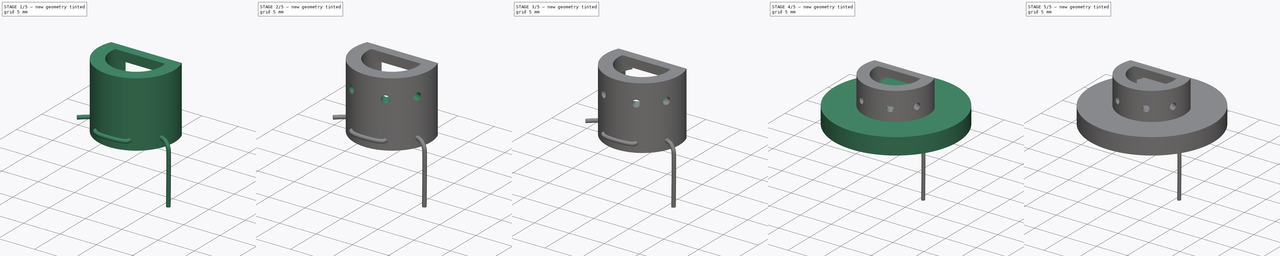
[diagram: build sequence overview — one tinted view per stage of 5, left to right]
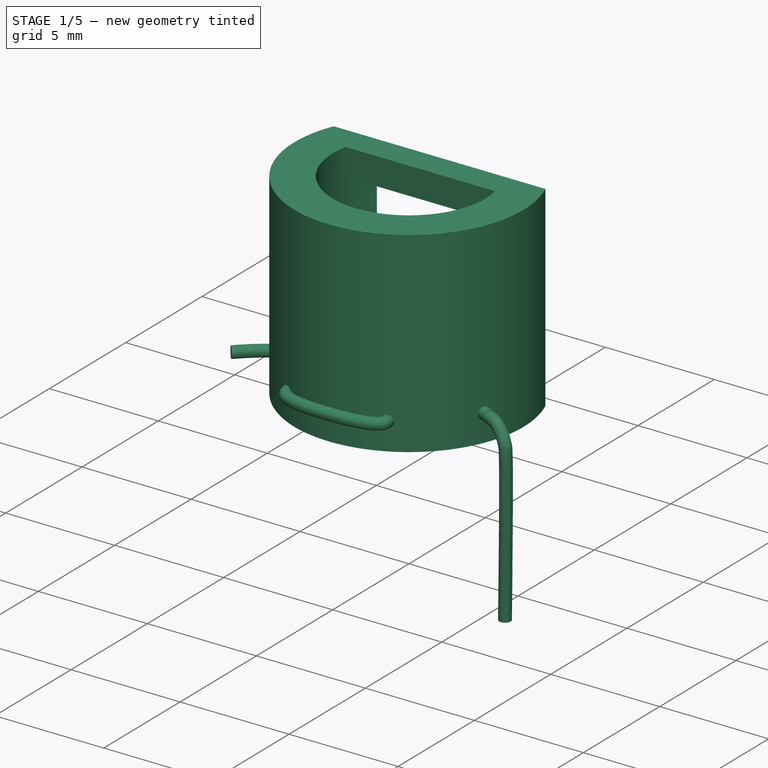
[diagram: stage 1 of 5 — iso view after this stage's code; geometry added in this stage tinted green]
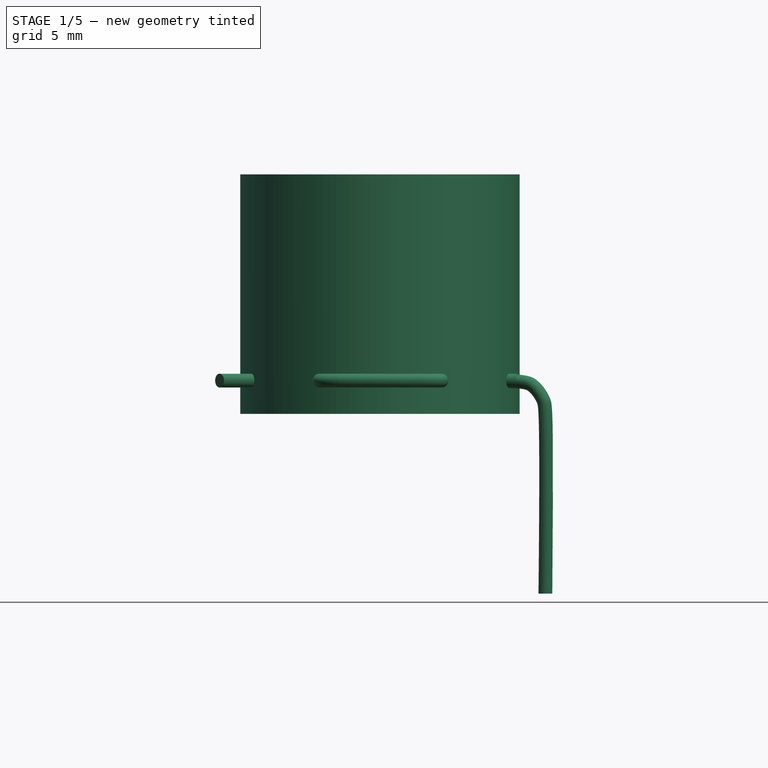
[diagram: stage 1 of 5 — front view after this stage's code; geometry added in this stage tinted green]
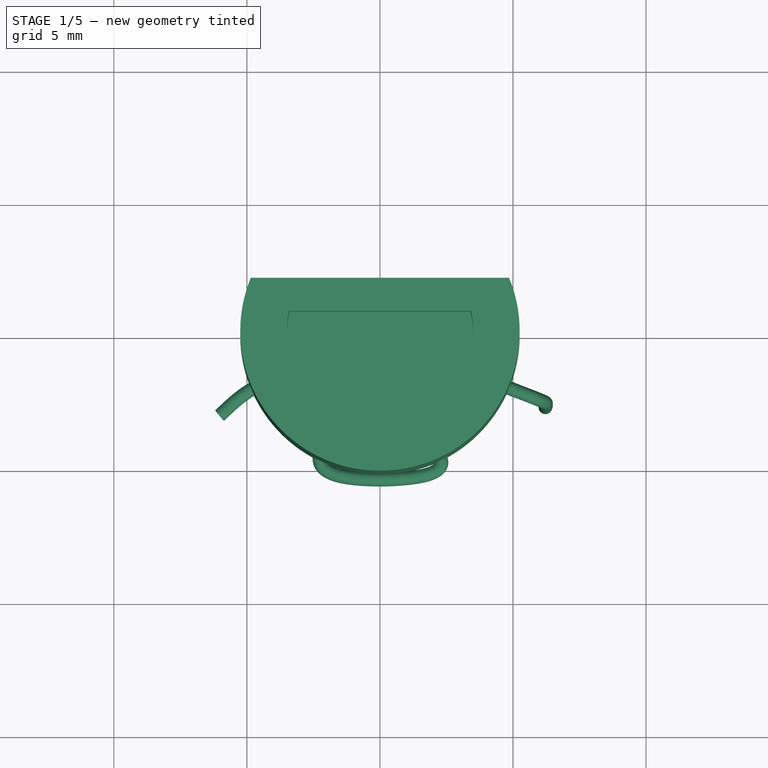
[diagram: stage 1 of 5 — top view after this stage's code; geometry added in this stage tinted green]
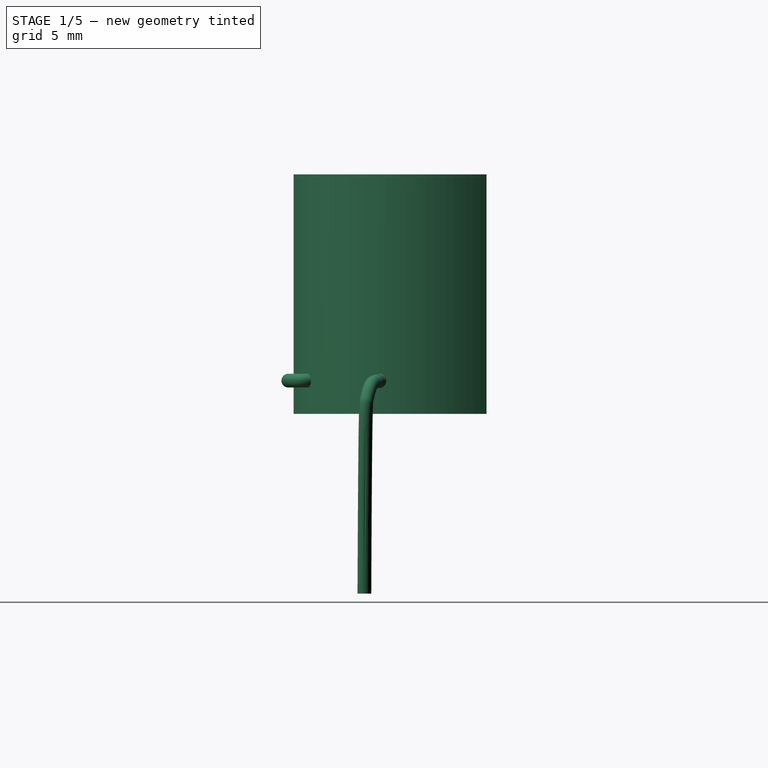
[diagram: stage 1 of 5 — right view after this stage's code; geometry added in this stage tinted green]
FCSTD DOCUMENT  (FreeCAD 0.20R29177 (Git))
Label: SR66_double-battery-holder
License: All rights reserved
LicenseURL: http://en.wikipedia.org/wiki/All_rights_reserved
objects: PartDesign::AdditiveCylinder×12, Sketcher::SketchObject×10, PartDesign::SubtractiveCylinder×10, PartDesign::Body×7, PartDesign::AdditivePipe×3, PartDesign::AdditiveEllipsoid×2, PartDesign::SubtractiveBox×2, PartDesign::AdditiveBox×2, Part::Feature×1, App::DocumentObjectGroup×1, App::Part×1
note: 80 computed .brp shape members not serialized (recipe doc carries the construction recipe); baked Part::Feature solids carry a one-line shape summary decoded from their .brp

FEATURE [PartDesign::Body] Body002  label="cell2"
  Group = -> [Sketch001,Cylinder003,Cylinder004,Cylinder005,Ellipsoid001]
  Origin = -> Origin002
  Placement = pos=(0,0,5.235) rot=(0,0,1;0rad)
  Tip = -> Ellipsoid001
FEATURE [PartDesign::AdditiveCylinder] Cylinder006  label="Main block"
  Angle = 360
  AttacherType = Attacher::AttachEngine3D
  AttachmentOffset = pos=(0,0,-1.25) rot=(0,0,1;0rad)
  FirstAngle = 0
  Height = 9
  MapMode = 5
  Placement = pos=(0,0,-1.25) rot=(0,0,1;0rad)
  Radius = 5.25
  SecondAngle = 0
  Support = -> [XY_Plane001]
FEATURE [PartDesign::SubtractiveBox] Box
  AttacherType = Attacher::AttachEngine3D
  AttachmentOffset = pos=(-5,2,-1.5) rot=(0,0,1;0rad)
  BaseFeature = -> Cylinder006
  Height = 10
  Length = 10
  MapMode = 5
  Placement = pos=(-5,2,-1.5) rot=(0,0,1;0rad)
  Support = -> [XY_Plane001]
  Width = 4
FEATURE [PartDesign::SubtractiveCylinder] Cylinder007  label="center-cut"
  Angle = 360
  AttacherType = Attacher::AttachEngine3D
  AttachmentOffset = pos=(0,0,1.5) rot=(0,0,1;0rad)
  BaseFeature = -> Box
  FirstAngle = 0
  Height = 6.5
  MapMode = 5
  Placement = pos=(0,0,1.5) rot=(0,0,1;0rad)
  Radius = 3.5
  SecondAngle = 0
  Support = -> [XY_Plane001]
FEATURE [PartDesign::AdditiveBox] Box001
  AttacherType = Attacher::AttachEngine3D
  AttachmentOffset = pos=(-3.9,0.75,6.5) rot=(0,0,1;0rad)
  BaseFeature = -> Cylinder007
  Height = 1.25
  Length = 7.8
  MapMode = 5
  Placement = pos=(-3.9,0.75,6.5) rot=(0,0,1;0rad)
  Support = -> [XY_Plane001]
  Width = 1.25
FEATURE [PartDesign::Body] Body001  label="holder"
  Group = -> [Cylinder006,Box,Cylinder007,Box001,Cylinder008,Cylinder009,Cylinder012,Cylinder013,Cylinder014,Cylinder015,Cylinder020,Cylinder021,Box002,Cylinder022,Box003,Cylinder023]
  Origin = -> Origin001
  Placement = pos=(0,0,1.24) rot=(0,0,1;0rad)
  Tip = -> Cylinder023
FEATURE [Sketcher::SketchObject] Sketch009  label="out-wire-diam-sketch"
  FullyConstrained = false
  MapMode = 5
  Placement = pos=(0,0,-8) rot=(0,0,1;0rad)
  Support = -> [XY_Plane006]
  sketch-geometry (1):
    g0: Circle CenterX=6.216 CenterY=-2.59 CenterZ=0 NormalX=0 NormalY=0 NormalZ=1 AngleXU=0 Radius=0.259
FEATURE [Sketcher::SketchObject] Sketch010  label="in-wire-sketch"
  FullyConstrained = false
  MapMode = 5
  Support = -> [XY_Plane006]
  sketch-geometry (31):
    g0-g15: Circle x16 (B-spline internal-alignment scaffolding for g16; pole/knot coordinates omitted)
    g16: BSplineCurve PolesCount=16 KnotsCount=14 Degree=3 IsPeriodic=0
    g17-g30: GeomPoint x14 (B-spline internal-alignment scaffolding for g16; pole/knot coordinates omitted)
  constraints (11):
    c: Weight(g0) = 1
    c: Equal(g0, g1-g8) x8
    c: PointOnObject(g8,g7)
    c: Equal(g0, g9-g12) x4
    c: PointOnObject(g12,g11)
    c: Equal(g0,g13)
    c: Equal(g0,g14)
    c: PointOnObject(g14,g13)
    c: Equal(g0,g15)
    c: InternalAlignment(g0-g15 -> g16) x16
    c: InternalAlignment(g17-g30 -> g16) x14
FEATURE [Sketcher::SketchObject] Sketch011  label="out-wire-sketch"
  FullyConstrained = false
  MapMode = 5
  Placement = pos=(0,-0.18,0.05) rot=(0.968246,-0.172395,-0.181054;1.59698rad)
  Support = -> [XZ_Plane006]
  sketch-geometry (13):
    g0-g6: Circle x7 (B-spline internal-alignment scaffolding for g7; pole/knot coordinates omitted)
    g7: BSplineCurve PolesCount=7 KnotsCount=5 Degree=3 IsPeriodic=0
    g8-g12: GeomPoint x5 (B-spline internal-alignment scaffolding for g7; pole/knot coordinates omitted)
  constraints (7):
    c: Weight(g0) = 1
    c: Equal(g0, g1-g5) x5
    c: PointOnObject(g5,g2)
    c: Equal(g0,g6)
    c: PointOnObject(g7,g-1)
    c: InternalAlignment(g0-g6 -> g7) x7
    c: InternalAlignment(g8-g12 -> g7) x5
FEATURE [PartDesign::AdditivePipe] AdditivePipe001  label="outer-wire"
  AuxilleryCurvelinear = true
  AuxillerySpineTangent = false
  Binormal = (0,0,0)
  Mode = 0
  Profile = -> Sketch009
  Spine = -> Sketch011
  SpineTangent = false
  Transformation = 0
  Transition = 2
FEATURE [Sketcher::SketchObject] Sketch012  label="wire-start-sketch"
  FullyConstrained = false
  MapMode = 5
  Placement = pos=(-3.585,-5.98,-4.575) rot=(-0.640184,0.768221,0;1.5708rad)
  Support = -> [XZ_Plane006]
  sketch-geometry (1):
    g0: Circle CenterX=-5.957 CenterY=0 CenterZ=0 NormalX=0 NormalY=0 NormalZ=1 AngleXU=0 Radius=0.259
  constraints (1):
    c: PointOnObject(g0,g-1)
FEATURE [PartDesign::AdditivePipe] AdditivePipe002  label="Inner-wire"
  AuxilleryCurvelinear = true
  AuxillerySpineTangent = false
  BaseFeature = -> AdditivePipe001
  Binormal = (0,0,0)
  Mode = 0
  Profile = -> Sketch012
  Spine = -> Sketch010
  SpineTangent = false
  Transformation = 0
  Transition = 0
FEATURE [PartDesign::Body] Body006  label="copper-wire-top"
  Group = -> [Sketch009,Sketch011,AdditivePipe001,Sketch010,Sketch012,AdditivePipe002]
  Origin = -> Origin006
  Placement = pos=(0,0,6.29) rot=(0,0,1;0rad)
  Tip = -> AdditivePipe002
FEATURE [App::Part] Part  label="SR66_double-battery-holder"
  Group = -> [Body006,Body005,Body001]
  Origin = -> Origin007
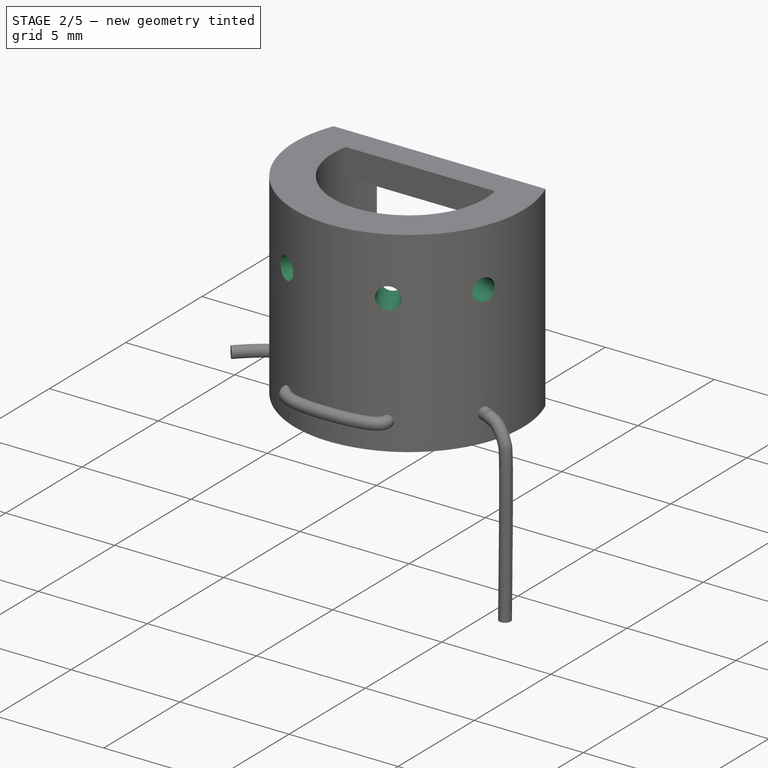
[diagram: stage 2 of 5 — iso view after this stage's code; geometry added in this stage tinted green]
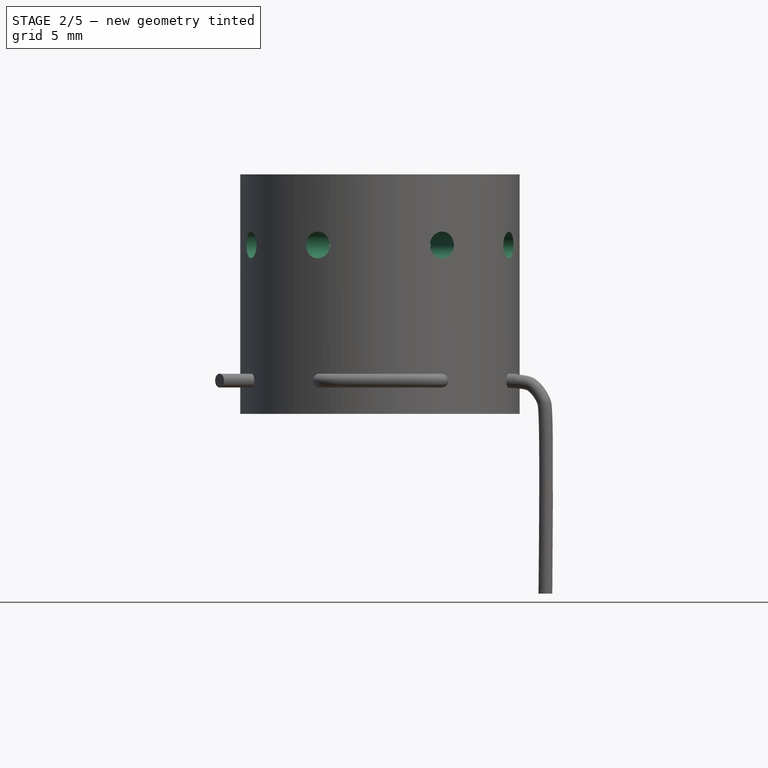
[diagram: stage 2 of 5 — front view after this stage's code; geometry added in this stage tinted green]
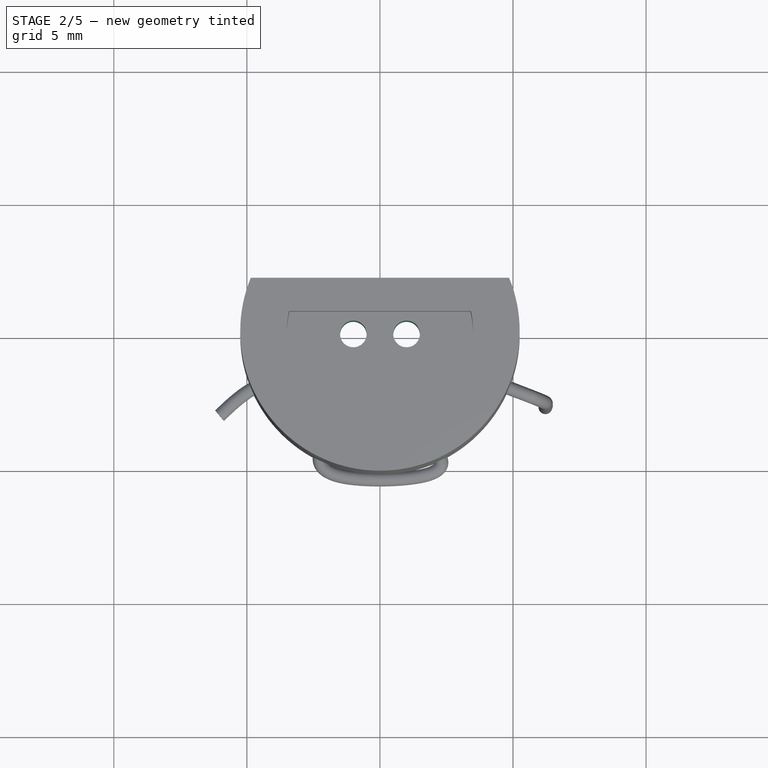
[diagram: stage 2 of 5 — top view after this stage's code; geometry added in this stage tinted green]
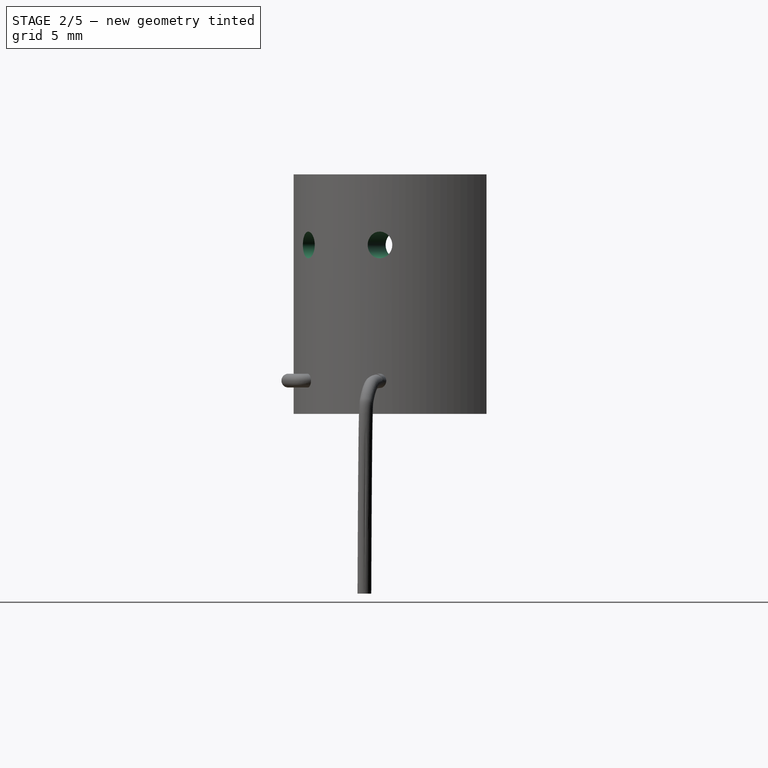
[diagram: stage 2 of 5 — right view after this stage's code; geometry added in this stage tinted green]
FEATURE [PartDesign::SubtractiveCylinder] Cylinder008  label="bottom-hole"
  Angle = 360
  AttacherType = Attacher::AttachEngine3D
  AttachmentOffset = pos=(-1,0,-2) rot=(0,0,1;0rad)
  BaseFeature = -> Box001
  FirstAngle = 0
  Height = 4
  MapMode = 5
  Placement = pos=(-1,0,-2) rot=(0,0,1;0rad)
  Radius = 0.5
  SecondAngle = 0
  Support = -> [XY_Plane001]
FEATURE [PartDesign::SubtractiveCylinder] Cylinder009  label="bottom-hole1"
  Angle = 360
  AttacherType = Attacher::AttachEngine3D
  AttachmentOffset = pos=(1,0,-2) rot=(0,0,1;0rad)
  BaseFeature = -> Cylinder008
  FirstAngle = 0
  Height = 4
  MapMode = 5
  Placement = pos=(1,0,-2) rot=(0,0,1;0rad)
  Radius = 0.5
  SecondAngle = 0
  Support = -> [XY_Plane001]
FEATURE [PartDesign::SubtractiveCylinder] Cylinder012
  Angle = 360
  AttacherType = Attacher::AttachEngine3D
  AttachmentOffset = pos=(-2.4,-1,5.1) rot=(0.726831,-0.485653,-0.485653;1.88458rad)
  BaseFeature = -> Cylinder009
  FirstAngle = 0
  Height = 3.5
  MapMode = 5
  Placement = pos=(-2.4,-1,5.1) rot=(0.726831,-0.485653,-0.485653;1.88458rad)
  Radius = 0.5
  SecondAngle = 0
  Support = -> [XY_Plane001]
FEATURE [PartDesign::SubtractiveCylinder] Cylinder013
  Angle = 360
  AttacherType = Attacher::AttachEngine3D
  AttachmentOffset = pos=(-0.75,-2,5.1) rot=(0.93305,-0.254379,-0.254379;1.64004rad)
  BaseFeature = -> Cylinder012
  FirstAngle = 0
  Height = 4
  MapMode = 5
  Placement = pos=(-0.75,-2,5.1) rot=(0.93305,-0.254379,-0.254379;1.64004rad)
  Radius = 0.5
  SecondAngle = 0
  Support = -> [XY_Plane001]
FEATURE [PartDesign::SubtractiveCylinder] Cylinder014
  Angle = 360
  AttacherType = Attacher::AttachEngine3D
  AttachmentOffset = pos=(0.75,-2,5.1) rot=(0.93305,0.254379,0.254379;1.64004rad)
  BaseFeature = -> Cylinder013
  FirstAngle = 0
  Height = 4
  MapMode = 5
  Placement = pos=(0.75,-2,5.1) rot=(0.93305,0.254379,0.254379;1.64004rad)
  Radius = 0.5
  SecondAngle = 0
  Support = -> [XY_Plane001]
FEATURE [PartDesign::SubtractiveCylinder] Cylinder015
  Angle = 360
  AttacherType = Attacher::AttachEngine3D
  AttachmentOffset = pos=(2.4,-1,5.1) rot=(0.726831,0.485653,0.485653;1.88458rad)
  BaseFeature = -> Cylinder014
  FirstAngle = 0
  Height = 3.5
  MapMode = 5
  Placement = pos=(2.4,-1,5.1) rot=(0.726831,0.485653,0.485653;1.88458rad)
  Radius = 0.5
  SecondAngle = 0
  Support = -> [XY_Plane001]
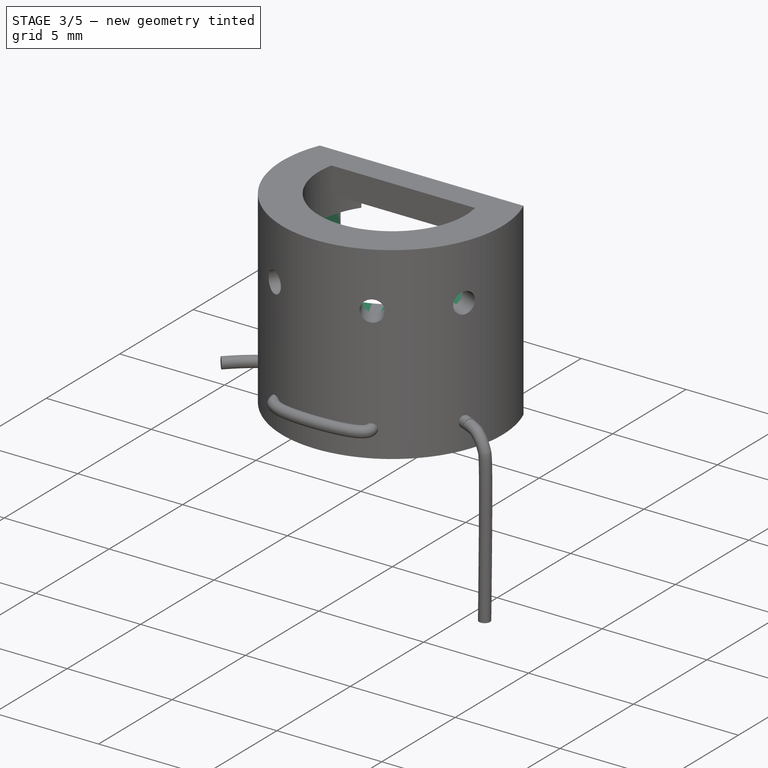
[diagram: stage 3 of 5 — iso view after this stage's code; geometry added in this stage tinted green]
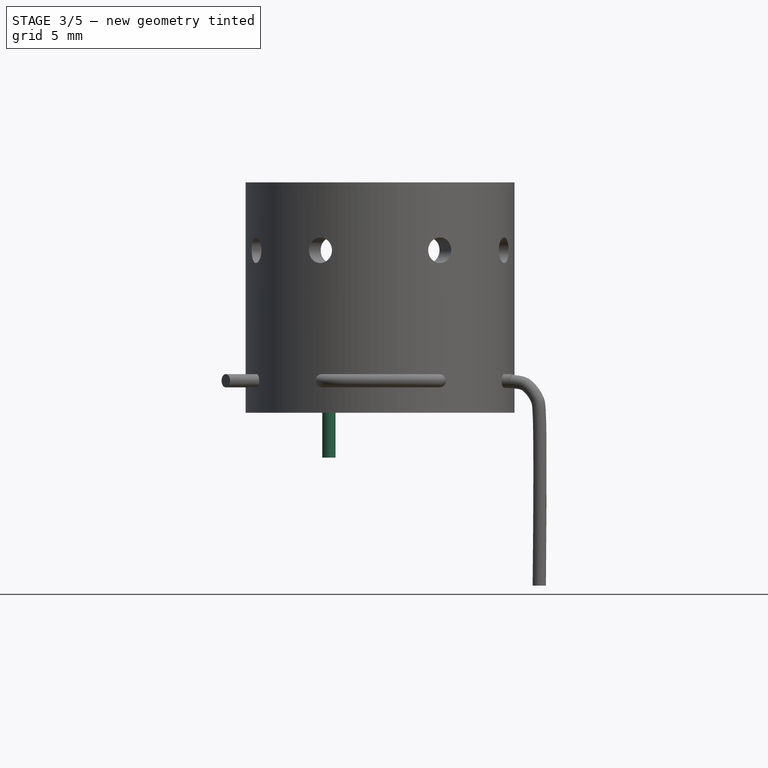
[diagram: stage 3 of 5 — front view after this stage's code; geometry added in this stage tinted green]
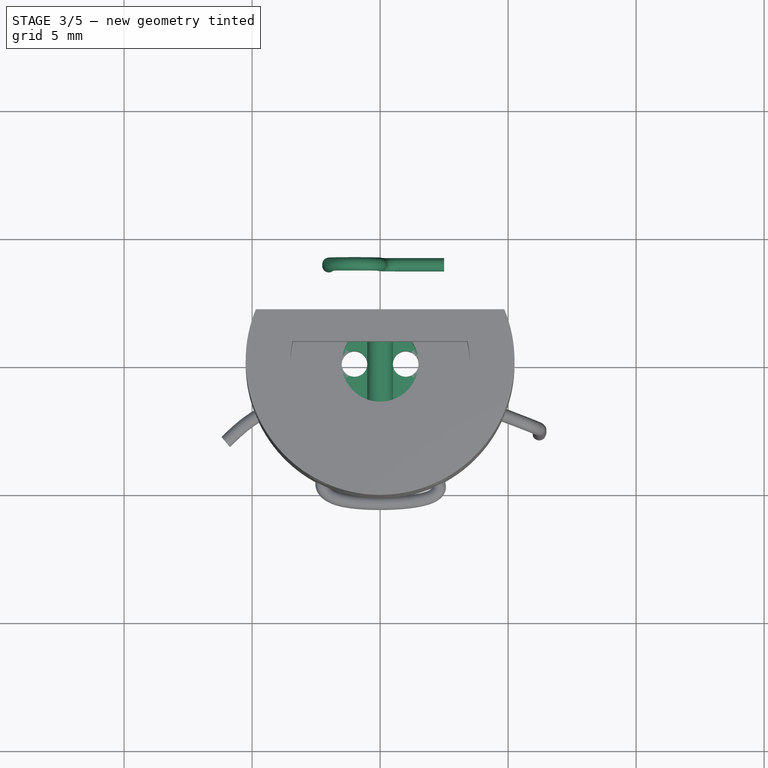
[diagram: stage 3 of 5 — top view after this stage's code; geometry added in this stage tinted green]
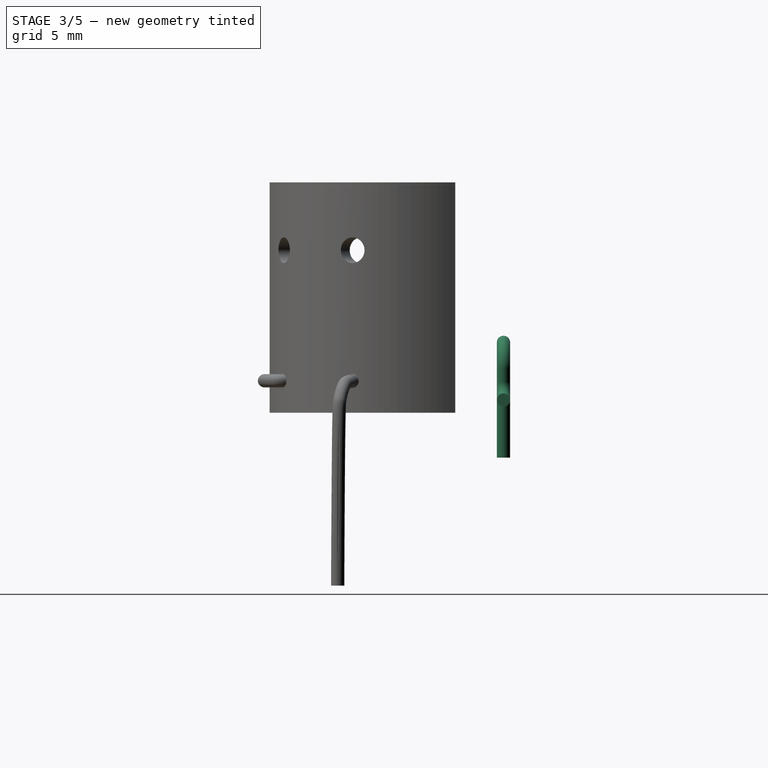
[diagram: stage 3 of 5 — right view after this stage's code; geometry added in this stage tinted green]
FEATURE [PartDesign::Body] Body003  label="CR2032"
  Group = -> [Sketch002,Cylinder016,Cylinder017]
  Origin = -> Origin003
  Tip = -> Cylinder017
FEATURE [Part::Feature] double_coin_cell_holder001
  Placement = pos=(0,0,0) rot=(0,0,1;3.14159rad)
  shape: bbox 22.86 x 16.44 x 8.89 mm, 1932 faces, 0 solids (baked)
FEATURE [App::DocumentObjectGroup] Group  label="Original"
  Group = -> [double_coin_cell_holder001,Body003,Body004]
FEATURE [Sketcher::SketchObject] Sketch004  label="diameter-sketch"
  AttachmentOffset = pos=(-2,0,0) rot=(0,0,1;0rad)
  FullyConstrained = false
  MapMode = 5
  Placement = pos=(-2,0,0) rot=(0,0,1;0rad)
  Support = -> [XY_Plane005]
  sketch-geometry (1):
    g0: Circle CenterX=0 CenterY=3.885 CenterZ=0 NormalX=0 NormalY=0 NormalZ=1 AngleXU=0 Radius=0.259
  constraints (1):
    c: PointOnObject(g0,g-2)
FEATURE [Sketcher::SketchObject] Sketch005  label="low-leg-sketch"
  AttachmentOffset = pos=(0,0,-3.89) rot=(0,0,1;0rad)
  FullyConstrained = false
  MapMode = 5
  Placement = pos=(0,3.89,9e-16) rot=(1,0,0;1.5708rad)
  Support = -> [XZ_Plane005]
  sketch-geometry (7):
    g0: LineSegment StartX=0 StartY=-0.051363 StartZ=0 EndX=0 EndY=0 EndZ=0
    g1: LineSegment StartX=-2 StartY=0 StartZ=0 EndX=-2 EndY=-3 EndZ=0
    g2: LineSegment StartX=-2 StartY=0 StartZ=0 EndX=-2 EndY=0.5 EndZ=0
    g3: LineSegment StartX=0 StartY=0 StartZ=0 EndX=0 EndY=0.5 EndZ=0
    g4: ArcOfCircle CenterX=-1 CenterY=0.5 CenterZ=0 NormalX=0 NormalY=0 NormalZ=1 AngleXU=0 Radius=1 StartAngle=0 EndAngle=3.14159
    g5: LineSegment StartX=0.698637 StartY=-0.75 StartZ=0 EndX=2.5 EndY=-0.75 EndZ=0
    g6: ArcOfCircle CenterX=0.698637 CenterY=-0.051363 CenterZ=0 NormalX=0 NormalY=0 NormalZ=1 AngleXU=0 Radius=0.698637 StartAngle=3.14159 EndAngle=4.71239
  constraints (10):
    c: Coincident(g2,g1)
    c: Vertical(g2)
    c: Coincident(g3,g0)
    c: PointOnObject(g3,g-2)
    c: Vertical(g3)
    c: Coincident(g4,g2)
    c: Coincident(g4,g3)
    c: Horizontal(g5)
    c: Tangent(g5,g6) = -1.5708
    c: Tangent(g0,g6) = 1.5708
FEATURE [PartDesign::AdditivePipe] AdditivePipe
  AuxilleryCurvelinear = true
  AuxillerySpineTangent = false
  Binormal = (0,0,0)
  Mode = 0
  Profile = -> Sketch004
  Spine = -> Sketch005
  SpineTangent = false
  Transformation = 0
  Transition = 0
FEATURE [PartDesign::Body] Body005  label="copper-wire-bot"
  Group = -> [Sketch004,Sketch005,AdditivePipe]
  Origin = -> Origin005
  Placement = pos=(1,-3.875,1.24) rot=(0,0,1;0rad)
  Tip = -> AdditivePipe
FEATURE [PartDesign::SubtractiveCylinder] Cylinder020  label="small-center-cut"
  Angle = 360
  AttacherType = Attacher::AttachEngine3D
  BaseFeature = -> Cylinder015
  FirstAngle = 0
  Height = 3
  MapMode = 5
  Radius = 1.5
  SecondAngle = 0
  Support = -> [XY_Plane001]
FEATURE [PartDesign::SubtractiveCylinder] Cylinder021  label="leg-space-above"
  Angle = 360
  AttacherType = Attacher::AttachEngine3D
  AttachmentOffset = pos=(1,0,-0.75) rot=(0,1,0;1.5708rad)
  BaseFeature = -> Cylinder020
  FirstAngle = 0
  Height = 3
  MapMode = 5
  Placement = pos=(1,0,-0.75) rot=(0,1,0;1.5708rad)
  Radius = 0.45
  SecondAngle = 0
  Support = -> [XY_Plane001]
FEATURE [PartDesign::SubtractiveBox] Box002  label="leg-space-below"
  AttacherType = Attacher::AttachEngine3D
  AttachmentOffset = pos=(0.8,-0.45,-1.73) rot=(0,0,1;0rad)
  BaseFeature = -> Cylinder021
  Height = 1
  Length = 3.2
  MapMode = 5
  Placement = pos=(0.8,-0.45,-1.73) rot=(0,0,1;0rad)
  Support = -> [XY_Plane001]
  Width = 0.9
FEATURE [PartDesign::AdditiveCylinder] Cylinder022  label="fill-space-cylinder"
  Angle = 360
  AttacherType = Attacher::AttachEngine3D
  AttachmentOffset = pos=(0,0.45,-1.5) rot=(0,0,1;0rad)
  BaseFeature = -> Box002
  FirstAngle = 0
  Height = 3
  MapMode = 5
  Placement = pos=(0,1.5,0.45) rot=(1,0,0;1.5708rad)
  Radius = 0.5
  SecondAngle = 0
  Support = -> [XZ_Plane001]
FEATURE [PartDesign::AdditiveBox] Box003
  AttacherType = Attacher::AttachEngine3D
  AttachmentOffset = pos=(-0.5,-1.5,-0.55) rot=(0,0,1;0rad)
  BaseFeature = -> Cylinder022
  Height = 1
  Length = 1
  MapMode = 5
  Placement = pos=(-0.5,-1.5,-0.55) rot=(0,0,1;0rad)
  Support = -> [XY_Plane001]
  Width = 3
FEATURE [PartDesign::SubtractiveCylinder] Cylinder023
  Angle = 360
  AttacherType = Attacher::AttachEngine3D
  AttachmentOffset = pos=(0,0,4.6) rot=(0,0,1;0rad)
  BaseFeature = -> Box003
  FirstAngle = 0
  Height = 1
  MapMode = 5
  Placement = pos=(0,0,4.6) rot=(0,0,1;0rad)
  Radius = 4.35
  SecondAngle = 0
  Support = -> [XY_Plane001]
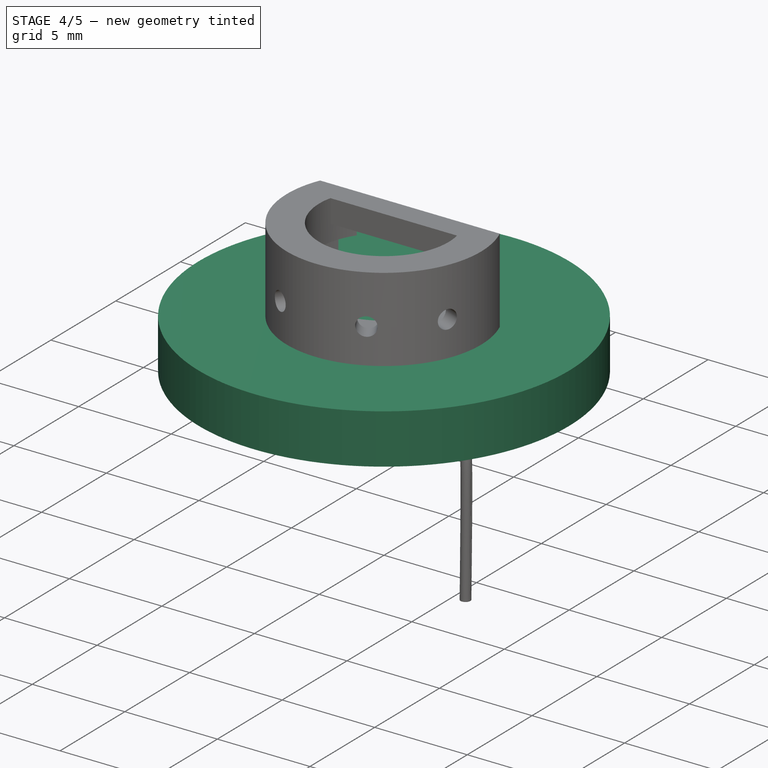
[diagram: stage 4 of 5 — iso view after this stage's code; geometry added in this stage tinted green]
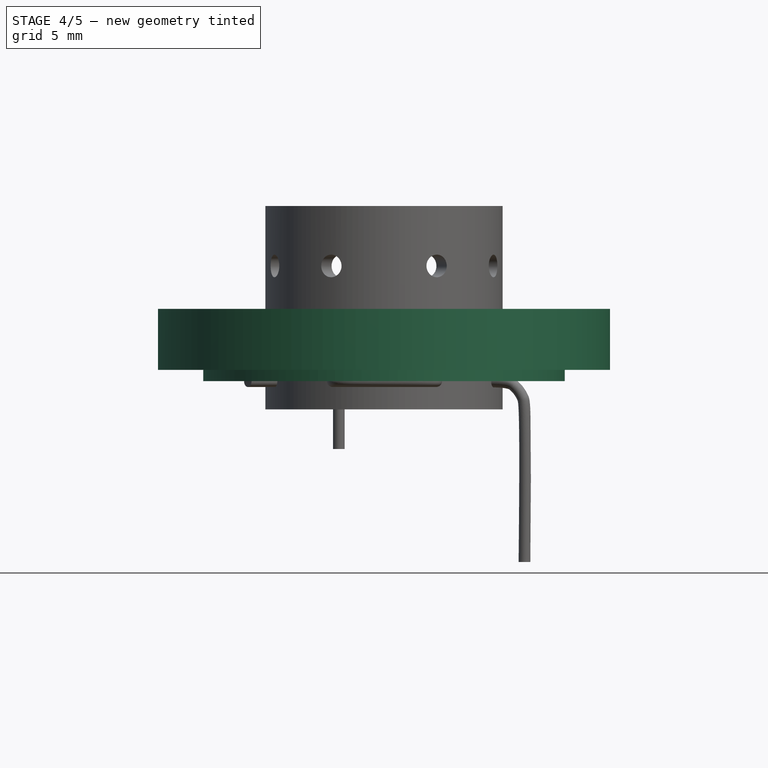
[diagram: stage 4 of 5 — front view after this stage's code; geometry added in this stage tinted green]
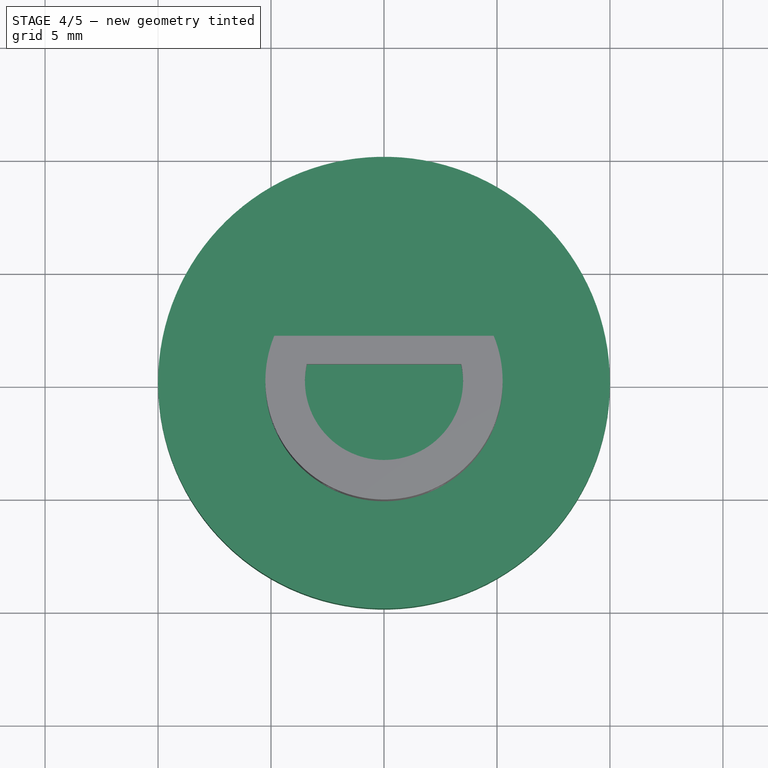
[diagram: stage 4 of 5 — top view after this stage's code; geometry added in this stage tinted green]
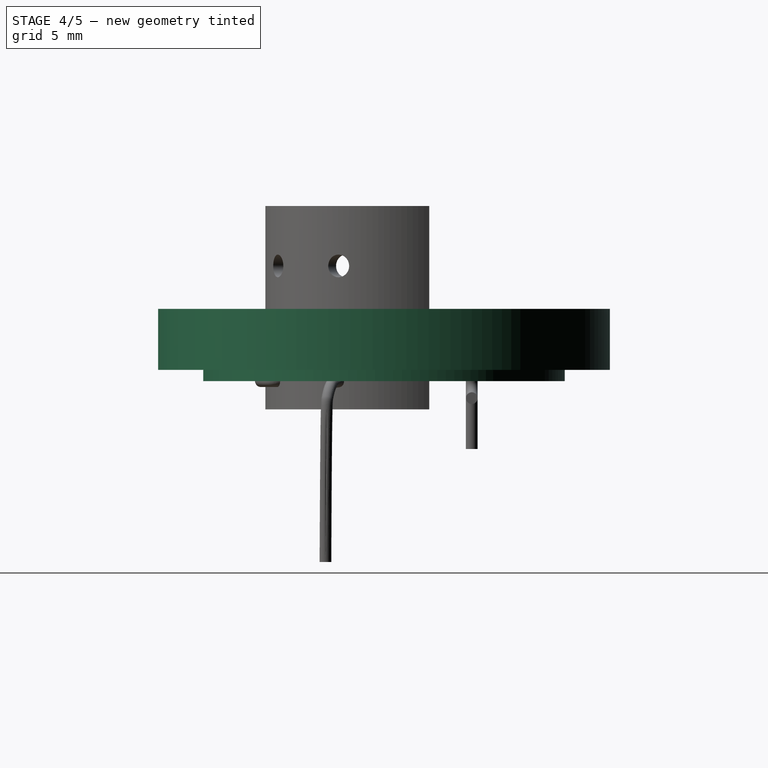
[diagram: stage 4 of 5 — right view after this stage's code; geometry added in this stage tinted green]
FEATURE [PartDesign::Body] Body  label="cell"
  Group = -> [Sketch,Cylinder,Cylinder001,Cylinder002,Ellipsoid]
  Origin = -> Origin
  Placement = pos=(0,0,2.74) rot=(0,0,1;0rad)
  Tip = -> Ellipsoid
FEATURE [PartDesign::AdditiveCylinder] Cylinder003  label="Gasket-bottom001"
  Angle = 360
  AttacherType = Attacher::AttachEngine3D
  FirstAngle = 0
  Height = 0.03
  MapMode = 5
  Radius = 1.5
  SecondAngle = 0
  Support = -> [XY_Plane002]
FEATURE [Sketcher::SketchObject] Sketch001
  FullyConstrained = false
  MapMode = 5
  Support = -> [XY_Plane002]
  sketch-geometry (2):
    g0: Circle CenterX=0 CenterY=0 CenterZ=0 NormalX=0 NormalY=0 NormalZ=1 AngleXU=0 Radius=3.4
    g1: Circle CenterX=0 CenterY=0 CenterZ=0 NormalX=0 NormalY=0 NormalZ=1 AngleXU=0 Radius=1.5
  constraints (2):
    c: Coincident(g0,g-1)
    c: Coincident(g1,g0)
FEATURE [PartDesign::AdditiveCylinder] Cylinder004  label="Gasket001"
  Angle = 360
  AttacherType = Attacher::AttachEngine3D
  AttachmentOffset = pos=(0,0,0.03) rot=(0,0,1;0rad)
  BaseFeature = -> Cylinder003
  FirstAngle = 0
  Height = 0.03
  MapMode = 5
  Placement = pos=(0,0,0.03) rot=(0,0,1;0rad)
  Radius = 1.6
  SecondAngle = 0
  Support = -> [XY_Plane002]
FEATURE [Sketcher::SketchObject] Sketch003
  FullyConstrained = false
  MapMode = 5
  Support = -> [XY_Plane004]
  sketch-geometry (2):
    g0: Circle CenterX=0 CenterY=0 CenterZ=0 NormalX=0 NormalY=0 NormalZ=1 AngleXU=0 Radius=10
    g1: Circle CenterX=0 CenterY=0 CenterZ=0 NormalX=0 NormalY=0 NormalZ=1 AngleXU=0 Radius=8
  constraints (2):
    c: Coincident(g0,g-1)
    c: Coincident(g1,g0)
FEATURE [PartDesign::AdditiveCylinder] Cylinder019
  Angle = 360
  AttacherType = Attacher::AttachEngine3D
  FirstAngle = 0
  Height = 0.5
  MapMode = 5
  Radius = 8
  SecondAngle = 0
  Support = -> [XY_Plane004]
FEATURE [PartDesign::AdditiveCylinder] Cylinder018
  Angle = 360
  AttacherType = Attacher::AttachEngine3D
  AttachmentOffset = pos=(0,0,0.5) rot=(0,0,1;0rad)
  BaseFeature = -> Cylinder019
  FirstAngle = 0
  Height = 2.7
  MapMode = 5
  Placement = pos=(0,0,0.5) rot=(0,0,1;0rad)
  Radius = 10
  SecondAngle = 0
  Support = -> [XY_Plane004]
FEATURE [PartDesign::Body] Body004  label="CR2032-2"
  Group = -> [Sketch003,Cylinder019,Cylinder018]
  Origin = -> Origin004
  Placement = pos=(0,0,3.2) rot=(0,0,1;0rad)
  Tip = -> Cylinder018
FEATURE [Sketcher::SketchObject] Sketch002
  FullyConstrained = false
  MapMode = 5
  Support = -> [XY_Plane003]
  sketch-geometry (2):
    g0: Circle CenterX=0 CenterY=0 CenterZ=0 NormalX=0 NormalY=0 NormalZ=1 AngleXU=0 Radius=10
    g1: Circle CenterX=0 CenterY=0 CenterZ=0 NormalX=0 NormalY=0 NormalZ=1 AngleXU=0 Radius=8
  constraints (2):
    c: Coincident(g0,g-1)
    c: Coincident(g1,g0)
FEATURE [PartDesign::AdditiveCylinder] Cylinder016
  Angle = 360
  AttacherType = Attacher::AttachEngine3D
  FirstAngle = 0
  Height = 0.5
  MapMode = 5
  Radius = 8
  SecondAngle = 0
  Support = -> [XY_Plane003]
FEATURE [PartDesign::AdditiveCylinder] Cylinder017
  Angle = 360
  AttacherType = Attacher::AttachEngine3D
  AttachmentOffset = pos=(0,0,0.5) rot=(0,0,1;0rad)
  BaseFeature = -> Cylinder016
  FirstAngle = 0
  Height = 2.7
  MapMode = 5
  Placement = pos=(0,0,0.5) rot=(0,0,1;0rad)
  Radius = 10
  SecondAngle = 0
  Support = -> [XY_Plane003]
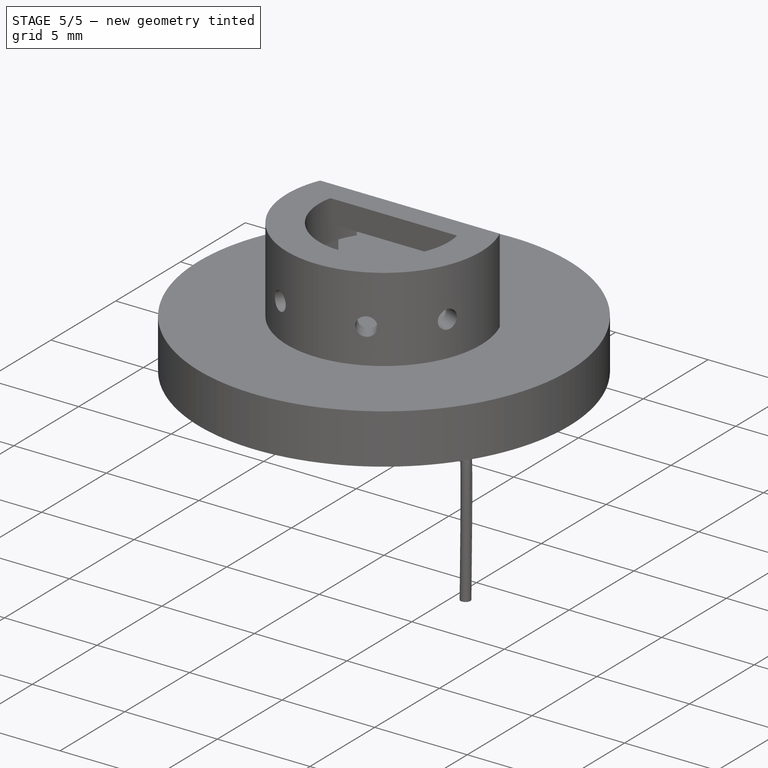
[diagram: stage 5 of 5 — iso view after this stage's code; geometry added in this stage tinted green]
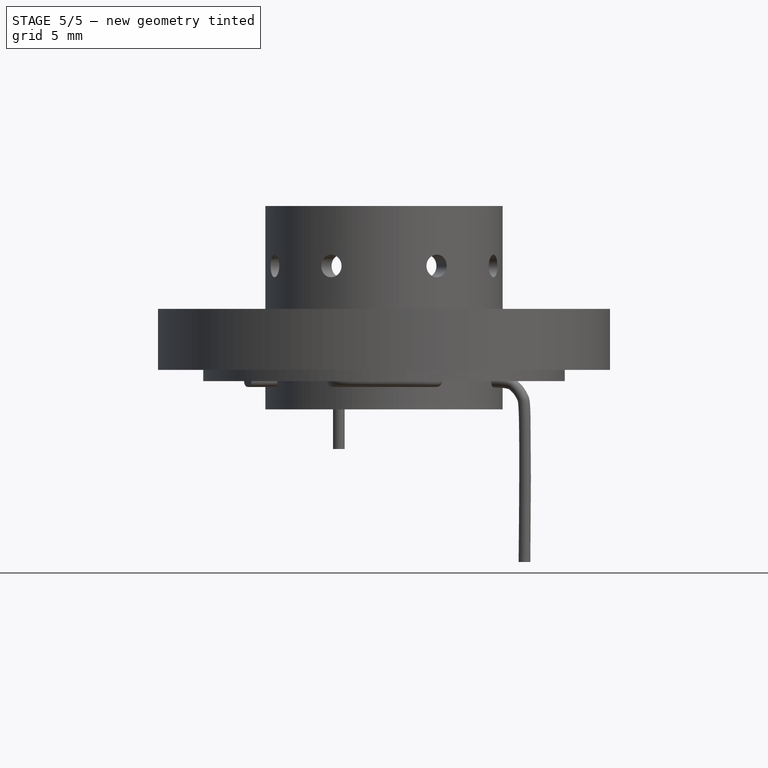
[diagram: stage 5 of 5 — front view after this stage's code; geometry added in this stage tinted green]
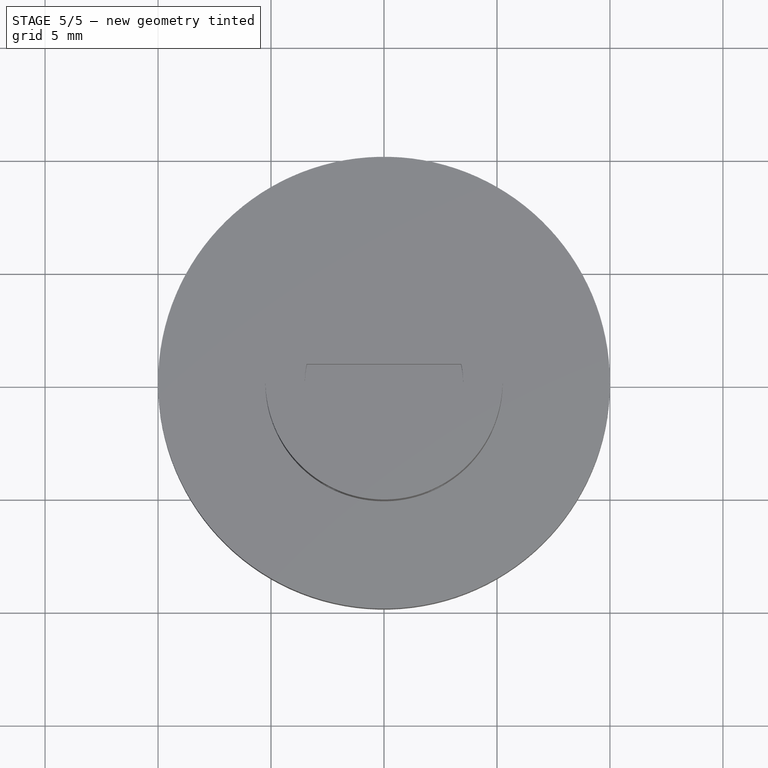
[diagram: stage 5 of 5 — top view after this stage's code; geometry added in this stage tinted green]
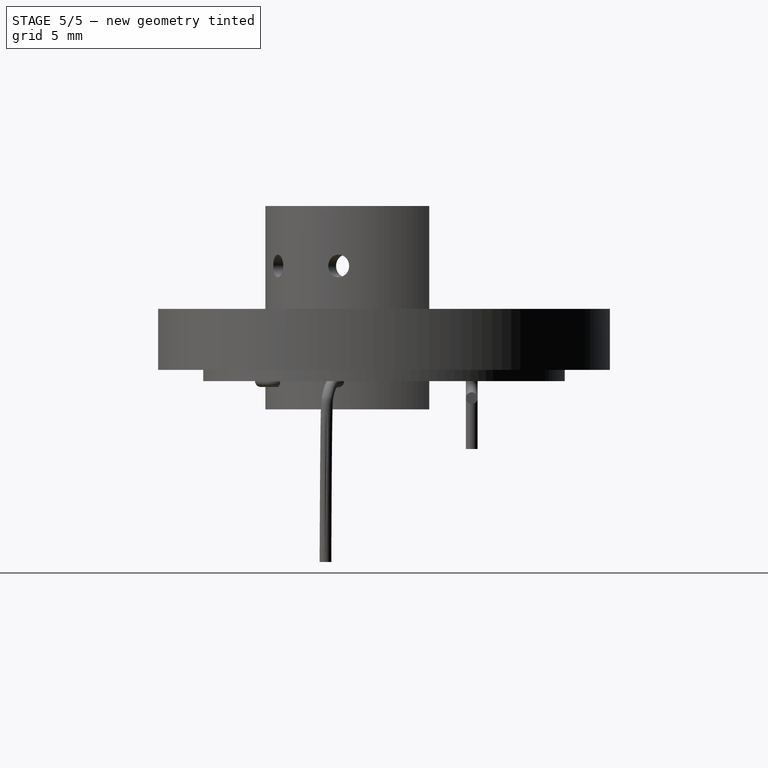
[diagram: stage 5 of 5 — right view after this stage's code; geometry added in this stage tinted green]
FEATURE [Sketcher::SketchObject] Sketch
  FullyConstrained = false
  MapMode = 5
  Support = -> [XY_Plane]
  sketch-geometry (2):
    g0: Circle CenterX=0 CenterY=0 CenterZ=0 NormalX=0 NormalY=0 NormalZ=1 AngleXU=0 Radius=3.4
    g1: Circle CenterX=0 CenterY=0 CenterZ=0 NormalX=0 NormalY=0 NormalZ=1 AngleXU=0 Radius=1.5
  constraints (2):
    c: Coincident(g0,g-1)
    c: Coincident(g1,g0)
FEATURE [PartDesign::AdditiveCylinder] Cylinder  label="Gasket-bottom"
  Angle = 360
  AttacherType = Attacher::AttachEngine3D
  FirstAngle = 0
  Height = 0.03
  MapMode = 5
  Radius = 1.5
  SecondAngle = 0
  Support = -> [XY_Plane]
FEATURE [PartDesign::AdditiveCylinder] Cylinder001  label="Gasket"
  Angle = 360
  AttacherType = Attacher::AttachEngine3D
  AttachmentOffset = pos=(0,0,0.03) rot=(0,0,1;0rad)
  BaseFeature = -> Cylinder
  FirstAngle = 0
  Height = 0.03
  MapMode = 5
  Placement = pos=(0,0,0.03) rot=(0,0,1;0rad)
  Radius = 1.6
  SecondAngle = 0
  Support = -> [XY_Plane]
FEATURE [PartDesign::AdditiveCylinder] Cylinder002  label="main body"
  Angle = 360
  AttacherType = Attacher::AttachEngine3D
  AttachmentOffset = pos=(0,0,0.06) rot=(0,0,1;0rad)
  BaseFeature = -> Cylinder001
  FirstAngle = 0
  Height = 2.19
  MapMode = 5
  Placement = pos=(0,0,0.06) rot=(0,0,1;0rad)
  Radius = 3.4
  SecondAngle = 0
  Support = -> [XY_Plane]
FEATURE [PartDesign::AdditiveEllipsoid] Ellipsoid  label="Top"
  Angle1 = -90
  Angle2 = 90
  Angle3 = 360
  AttacherType = Attacher::AttachEngine3D
  AttachmentOffset = pos=(0,0,2.24) rot=(0,0,1;0rad)
  BaseFeature = -> Cylinder002
  MapMode = 5
  Placement = pos=(0,0,2.24) rot=(0,0,1;0rad)
  Radius1 = 0.25
  Radius2 = 3.3
  Radius3 = 0
  Support = -> [XY_Plane]
FEATURE [PartDesign::AdditiveCylinder] Cylinder005  label="main body001"
  Angle = 360
  AttacherType = Attacher::AttachEngine3D
  AttachmentOffset = pos=(0,0,0.06) rot=(0,0,1;0rad)
  BaseFeature = -> Cylinder004
  FirstAngle = 0
  Height = 2.19
  MapMode = 5
  Placement = pos=(0,0,0.06) rot=(0,0,1;0rad)
  Radius = 3.4
  SecondAngle = 0
  Support = -> [XY_Plane002]
FEATURE [PartDesign::AdditiveEllipsoid] Ellipsoid001  label="Top001"
  Angle1 = -90
  Angle2 = 90
  Angle3 = 360
  AttacherType = Attacher::AttachEngine3D
  AttachmentOffset = pos=(0,0,2.24) rot=(0,0,1;0rad)
  BaseFeature = -> Cylinder005
  MapMode = 5
  Placement = pos=(0,0,2.24) rot=(0,0,1;0rad)
  Radius1 = 0.25
  Radius2 = 3.3
  Radius3 = 0
  Support = -> [XY_Plane002]
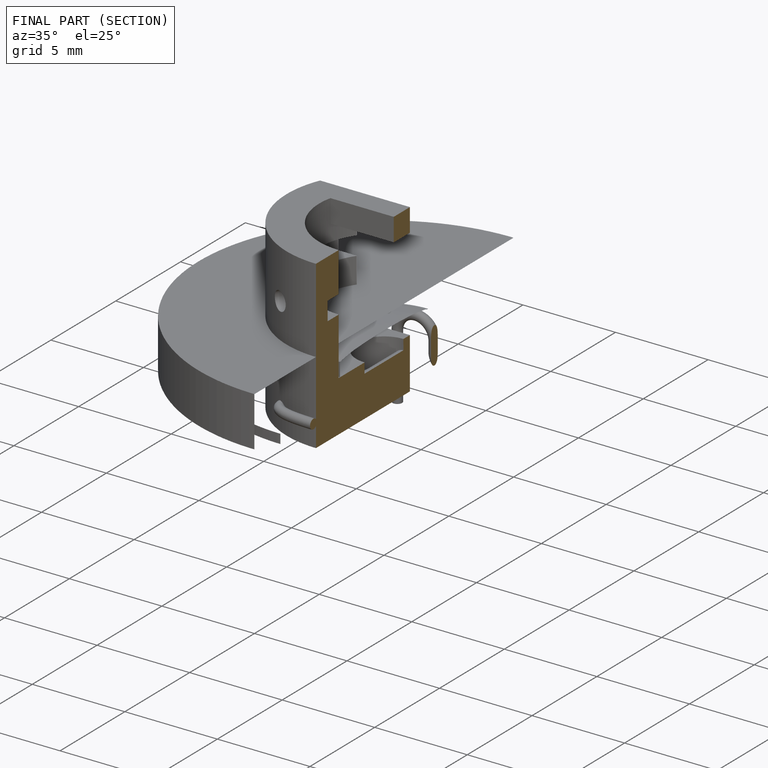
[diagram: finished part — half-section view (interior)]
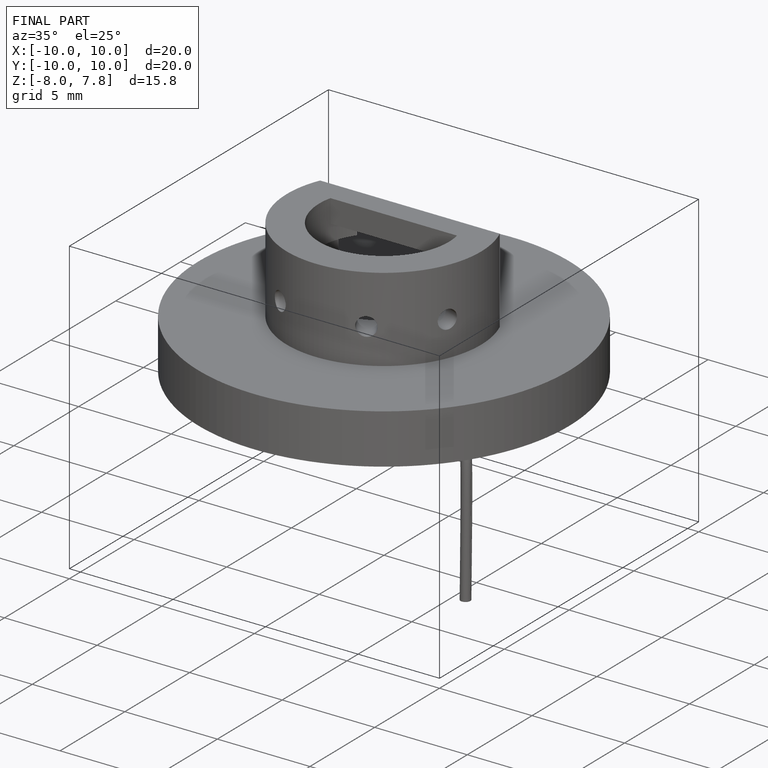
[diagram: finished part — iso view with bounding-box wireframe]
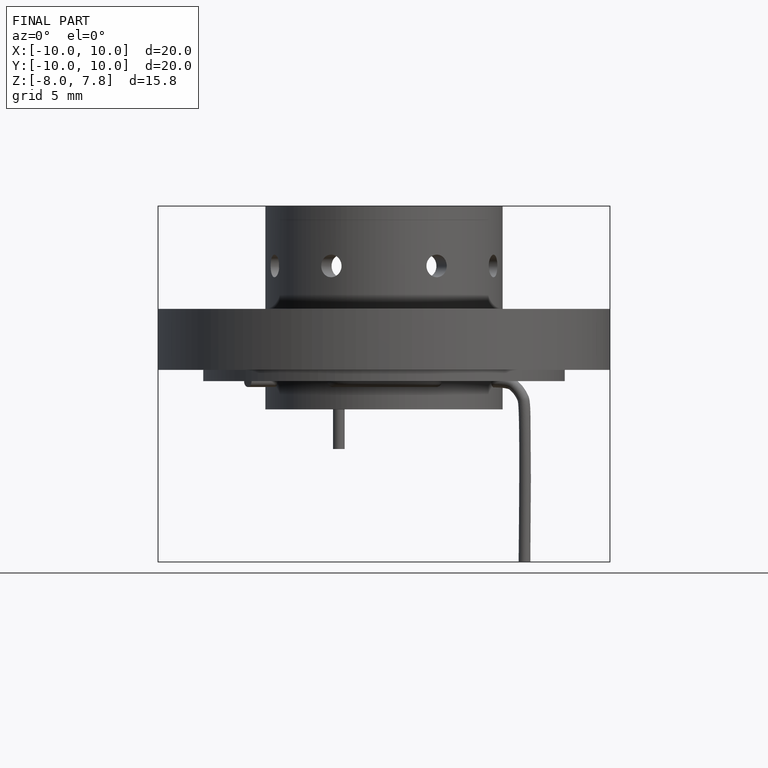
[diagram: finished part — front view with bounding-box wireframe]
